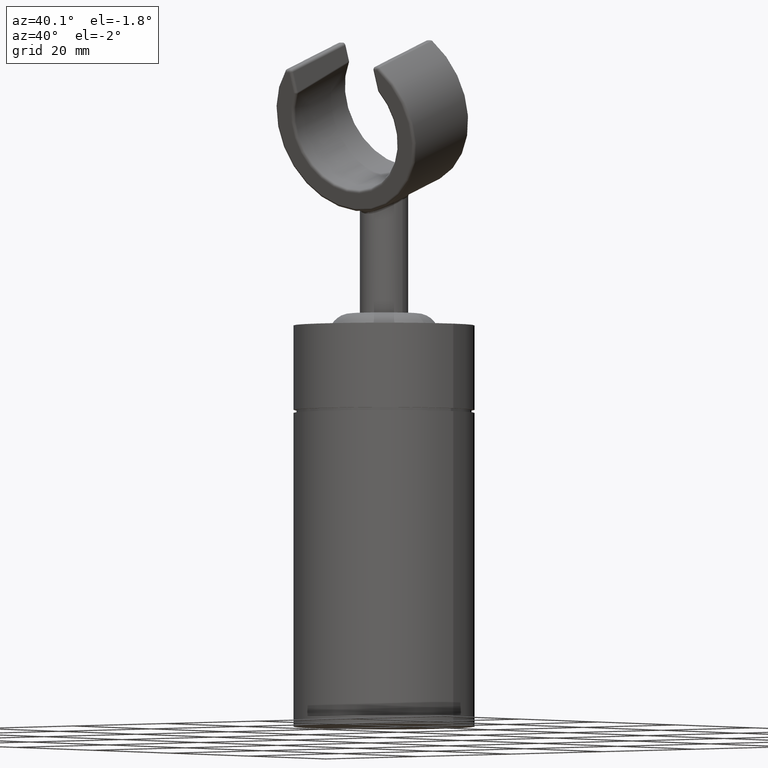
[diagram: clean part render]
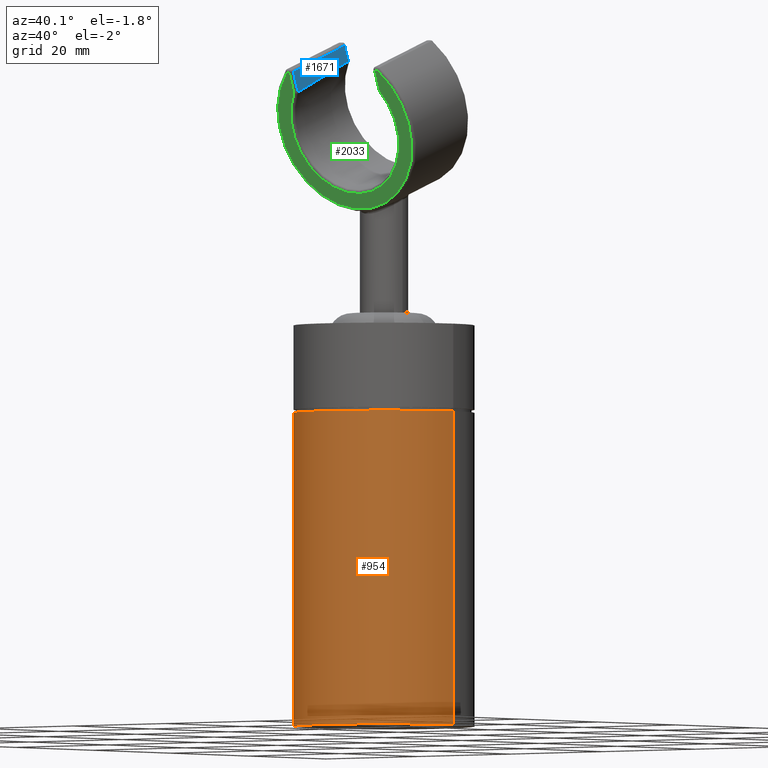
[diagram: same view with three faces highlighted in distinct colors, each labeled with its STEP entity id]
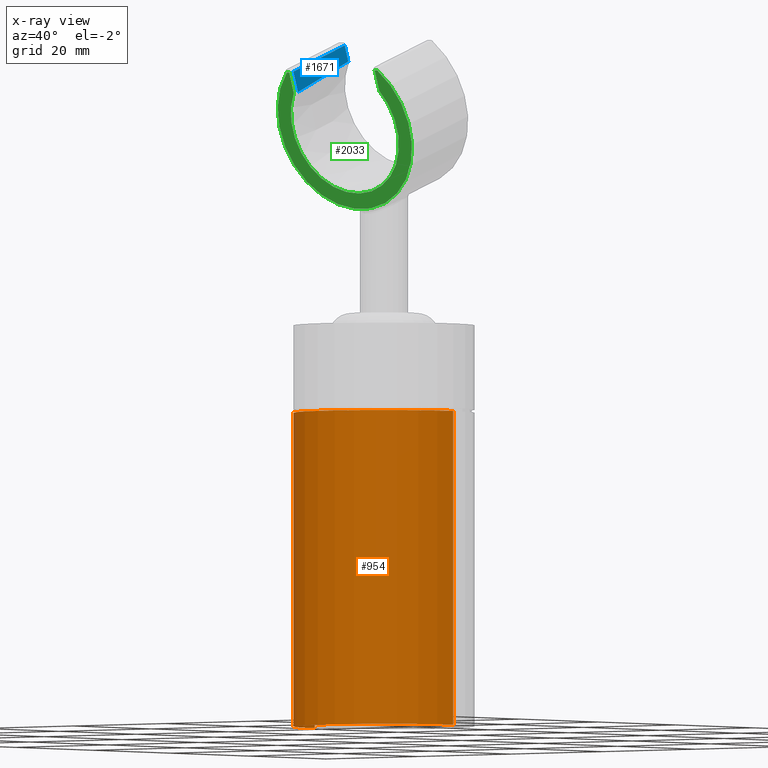
[diagram: x-ray of the same camera — body ghosted, the three highlighted faces saturated]
A machine part, auxiliary view with three faces highlighted in distinct colors.
The next image is the same camera in x-ray (body ghosted, the three faces saturated) — at least one of them is partly hidden behind the body in this view.
Their STEP definitions:

[orange] entity #954 — the highlighted cylindrical surface (partial cylindrical patch) has radius 15 mm, axis along (0, 0, 1).
#112=DIRECTION('',(0.E0,0.E0,-1.E0));
#113=VECTOR('',#112,5.2E1);
#114=CARTESIAN_POINT('',(1.5E1,0.E0,0.E0));
#115=LINE('',#114,#113);
#116=DIRECTION('',(0.E0,0.E0,-1.E0));
#117=VECTOR('',#116,5.2E1);
#118=CARTESIAN_POINT('',(-1.5E1,0.E0,0.E0));
#119=LINE('',#118,#117);
#120=CARTESIAN_POINT('',(0.E0,0.E0,-2.131628207280E-14));
#121=DIRECTION('',(0.E0,0.E0,-1.E0));
#122=DIRECTION('',(1.E0,0.E0,0.E0));
#123=AXIS2_PLACEMENT_3D('',#120,#121,#122);
#130=CARTESIAN_POINT('',(0.E0,0.E0,-5.2E1));
#131=DIRECTION('',(0.E0,0.E0,-1.E0));
#132=DIRECTION('',(1.E0,0.E0,0.E0));
#133=AXIS2_PLACEMENT_3D('',#130,#131,#132);
#616=CARTESIAN_POINT('',(1.5E1,0.E0,0.E0));
#617=CARTESIAN_POINT('',(1.5E1,0.E0,-5.2E1));
#618=VERTEX_POINT('',#616);
#619=VERTEX_POINT('',#617);
#632=CARTESIAN_POINT('',(-1.5E1,0.E0,0.E0));
#633=CARTESIAN_POINT('',(-1.5E1,0.E0,-5.2E1));
#634=VERTEX_POINT('',#632);
#635=VERTEX_POINT('',#633);
#940=CARTESIAN_POINT('',(0.E0,0.E0,-5.5425E1));
#941=DIRECTION('',(0.E0,0.E0,1.E0));
#942=DIRECTION('',(-1.E0,0.E0,0.E0));
#943=AXIS2_PLACEMENT_3D('',#940,#941,#942);
#944=CYLINDRICAL_SURFACE('',#943,1.5E1);
#946=ORIENTED_EDGE('',*,*,#945,.T.);
#948=ORIENTED_EDGE('',*,*,#947,.T.);
#950=ORIENTED_EDGE('',*,*,#949,.F.);
#951=ORIENTED_EDGE('',*,*,#922,.F.);
#952=EDGE_LOOP('',(#946,#948,#950,#951));
#953=FACE_OUTER_BOUND('',#952,.F.);
#954=ADVANCED_FACE('',(#953),#944,.T.);
#124=CIRCLE('',#123,1.5E1);
#134=CIRCLE('',#133,1.5E1);
#922=EDGE_CURVE('',#618,#634,#124,.T.);
#945=EDGE_CURVE('',#618,#619,#115,.T.);
#947=EDGE_CURVE('',#619,#635,#134,.T.);
#949=EDGE_CURVE('',#634,#635,#119,.T.);

[blue] entity #1671 — the highlighted planar face has unit normal (-1, 0, 0).
#383=DIRECTION('',(-4.407243349765E-10,-3.319304891973E-1,9.433038483655E-1));
#384=VECTOR('',#383,2.780919092411E0);
#385=CARTESIAN_POINT('',(-8.749999998774E0,1.206893875628E0,5.846591575639E1));
#386=LINE('',#385,#384);
#387=CARTESIAN_POINT('',(-8.749999998774E0,1.206893875628E0,5.846591575639E1));
#388=CARTESIAN_POINT('',(-8.750000001681E0,2.157434421048E-1,5.805562766424E1));
#389=CARTESIAN_POINT('',(-8.749999999963E0,-1.801756228630E0,5.721953067915E1));
#390=CARTESIAN_POINT('',(-8.749999997609E0,-4.882993290536E0,5.593939197245E1));
#391=CARTESIAN_POINT('',(-8.750000009600E0,-8.170313744878E0,5.456978711837E1));
#392=CARTESIAN_POINT('',(-8.749999979194E0,-1.052351514137E1,5.358610434188E1));
#393=CARTESIAN_POINT('',(-8.749999987783E0,-1.173838561997E1,5.307723320578E1));
#395=DIRECTION('',(3.424868097371E-9,3.319304887955E-1,-9.433038485069E-1));
#396=VECTOR('',#395,3.567151117454E0);
#397=CARTESIAN_POINT('',(-8.75E0,-1.292243183399E1,5.644214058308E1));
#398=LINE('',#397,#396);
#399=DIRECTION('',(0.E0,9.433038482043E-1,3.319304896555E-1));
#400=VECTOR('',#399,1.4E1);
#401=CARTESIAN_POINT('',(-8.75E0,-1.292243183399E1,5.644214058308E1));
#402=LINE('',#401,#400);
#649=CARTESIAN_POINT('',(-8.749999996689E0,1.206893895084E0,5.846591576444E1));
#651=VERTEX_POINT('',#649);
#652=CARTESIAN_POINT('',(-8.75E0,2.838220408660E-1,6.108916743825E1));
#653=VERTEX_POINT('',#652);
#694=CARTESIAN_POINT('',(-8.75E0,-1.292243183399E1,5.644214058307E1));
#695=VERTEX_POINT('',#694);
#696=CARTESIAN_POINT('',(-8.749999987783E0,-1.173838561997E1,5.307723320578E1));
#697=VERTEX_POINT('',#696);
#1658=CARTESIAN_POINT('',(-8.75E0,-5.166710651976E1,3.220759634417E1));
#1659=DIRECTION('',(-1.E0,0.E0,0.E0));
#1660=DIRECTION('',(0.E0,-3.319304896562E-1,9.433038482041E-1));
#1661=AXIS2_PLACEMENT_3D('',#1658,#1659,#1660);
#1662=PLANE('',#1661);
#1663=ORIENTED_EDGE('',*,*,#1641,.F.);
#1665=ORIENTED_EDGE('',*,*,#1664,.T.);
#1667=ORIENTED_EDGE('',*,*,#1666,.F.);
#1668=ORIENTED_EDGE('',*,*,#1602,.T.);
#1669=EDGE_LOOP('',(#1663,#1665,#1667,#1668));
#1670=FACE_OUTER_BOUND('',#1669,.F.);
#1671=ADVANCED_FACE('',(#1670),#1662,.F.);
#394=B_SPLINE_CURVE_WITH_KNOTS('',3,(#387,#388,#389,#390,#391,#392,#393),
.UNSPECIFIED.,.F.,.F.,(4,1,1,1,4),(0.E0,2.5E-1,5.E-1,7.5E-1,1.E0),
.UNSPECIFIED.);
#1602=EDGE_CURVE('',#695,#653,#402,.T.);
#1641=EDGE_CURVE('',#651,#653,#386,.T.);
#1664=EDGE_CURVE('',#651,#697,#394,.T.);
#1666=EDGE_CURVE('',#695,#697,#398,.T.);

[green] entity #2033 — the highlighted planar face has unit normal (0, 0.9433, 0.3319).
#543=DIRECTION('',(1.E0,0.E0,-5.186831665818E-14));
#544=VECTOR('',#543,5.479589711327E-1);
#545=CARTESIAN_POINT('',(-9.797958971133E0,-1.339408375809E1,5.627617533824E1));
#546=LINE('',#545,#544);
#547=DIRECTION('',(1.445263364933E-8,3.319304896562E-1,-9.433038482041E-1));
#548=VECTOR('',#547,3.567151255163E0);
#549=CARTESIAN_POINT('',(-9.25E0,-1.339408375809E1,5.627617533824E1));
#550=LINE('',#549,#548);
#551=CARTESIAN_POINT('',(0.E0,-1.007477886153E1,4.684313685620E1));
#552=DIRECTION('',(0.E0,-9.433038482041E-1,-3.319304896562E-1));
#553=DIRECTION('',(-8.209856685192E-1,-1.895153147133E-1,5.385782000557E-1));
#554=AXIS2_PLACEMENT_3D('',#551,#552,#553);
#556=DIRECTION('',(1.121280330769E-8,-3.319304896562E-1,9.433038482041E-1));
#557=VECTOR('',#556,3.567151387462E0);
#558=CARTESIAN_POINT('',(9.249999960002E0,-1.221003745137E1,5.291126770732E1));
#559=LINE('',#558,#557);
#560=DIRECTION('',(1.E0,0.E0,-1.296707916454E-14));
#561=VECTOR('',#560,5.479589711328E-1);
#562=CARTESIAN_POINT('',(9.25E0,-1.339408375809E1,5.627617533824E1));
#563=LINE('',#562,#561);
#564=CARTESIAN_POINT('',(0.E0,-1.007477886153E1,4.684313685620E1));
#565=DIRECTION('',(0.E0,9.433038482041E-1,3.319304896562E-1));
#566=DIRECTION('',(6.998542122238E-1,-2.370932068973E-1,6.737884630029E-1));
#567=AXIS2_PLACEMENT_3D('',#564,#565,#566);
#690=CARTESIAN_POINT('',(-9.797958971133E0,-1.339408375809E1,5.627617533824E1));
#691=CARTESIAN_POINT('',(-9.25E0,-1.339408375809E1,5.627617533824E1));
#692=VERTEX_POINT('',#690);
#693=VERTEX_POINT('',#691);
#698=CARTESIAN_POINT('',(-9.249999948445E0,-1.221003749529E1,5.291126783212E1));
#699=VERTEX_POINT('',#698);
#704=CARTESIAN_POINT('',(9.249999886414E0,-1.221003735349E1,5.291126742914E1));
#705=VERTEX_POINT('',#704);
#710=CARTESIAN_POINT('',(9.25E0,-1.339408375809E1,5.627617533824E1));
#711=VERTEX_POINT('',#710);
#716=CARTESIAN_POINT('',(9.797958971133E0,-1.339408375809E1,5.627617533824E1));
#717=VERTEX_POINT('',#716);
#2016=CARTESIAN_POINT('',(0.E0,-1.007477886153E1,4.684313685620E1));
#2017=DIRECTION('',(0.E0,9.433038482041E-1,3.319304896562E-1));
#2018=DIRECTION('',(0.E0,3.319304896562E-1,-9.433038482041E-1));
#2019=AXIS2_PLACEMENT_3D('',#2016,#2017,#2018);
#2020=PLANE('',#2019);
#2022=ORIENTED_EDGE('',*,*,#2021,.T.);
#2024=ORIENTED_EDGE('',*,*,#2023,.T.);
#2026=ORIENTED_EDGE('',*,*,#2025,.T.);
#2028=ORIENTED_EDGE('',*,*,#2027,.T.);
#2029=ORIENTED_EDGE('',*,*,#2003,.T.);
#2030=ORIENTED_EDGE('',*,*,#1457,.T.);
#2031=EDGE_LOOP('',(#2022,#2024,#2026,#2028,#2029,#2030));
#2032=FACE_OUTER_BOUND('',#2031,.F.);
#2033=ADVANCED_FACE('',(#2032),#2020,.F.);
#555=CIRCLE('',#554,1.126694436733E1);
#568=CIRCLE('',#567,1.4E1);
#1457=EDGE_CURVE('',#717,#692,#568,.T.);
#2003=EDGE_CURVE('',#711,#717,#563,.T.);
#2021=EDGE_CURVE('',#692,#693,#546,.T.);
#2023=EDGE_CURVE('',#693,#699,#550,.T.);
#2025=EDGE_CURVE('',#699,#705,#555,.T.);
#2027=EDGE_CURVE('',#705,#711,#559,.T.);